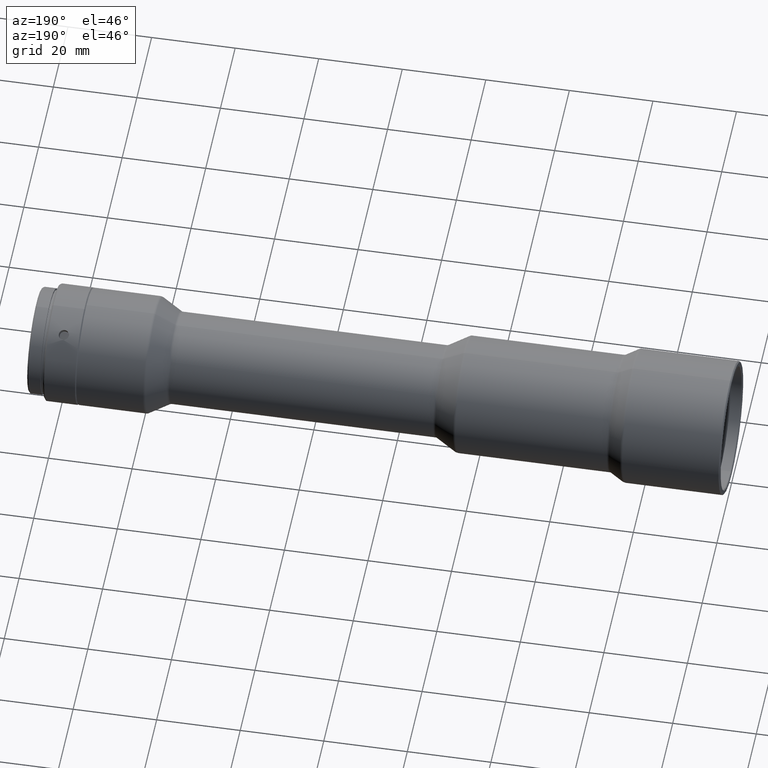
[diagram: clean part render]
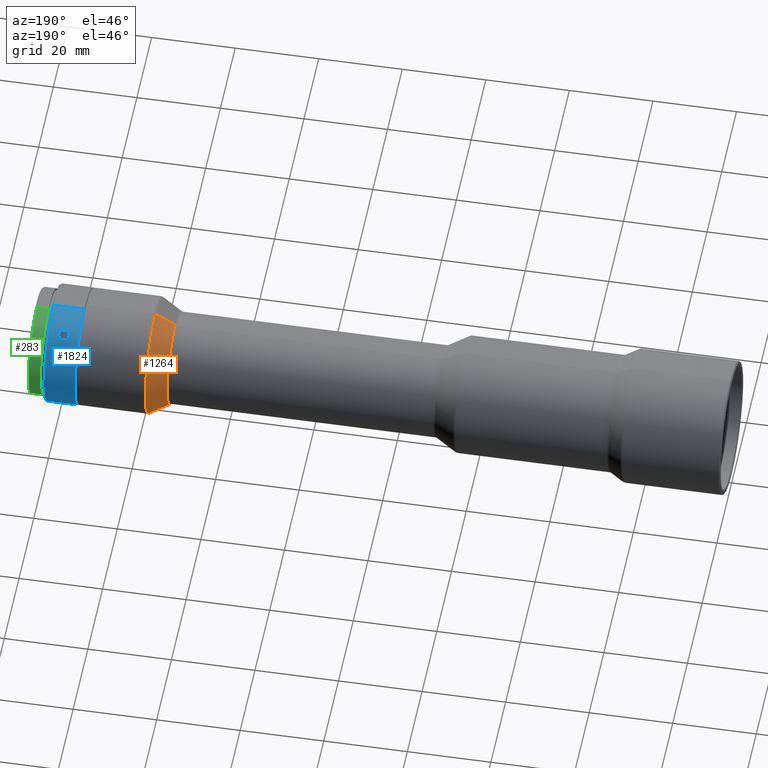
[diagram: same view with three faces highlighted in distinct colors, each labeled with its STEP entity id]
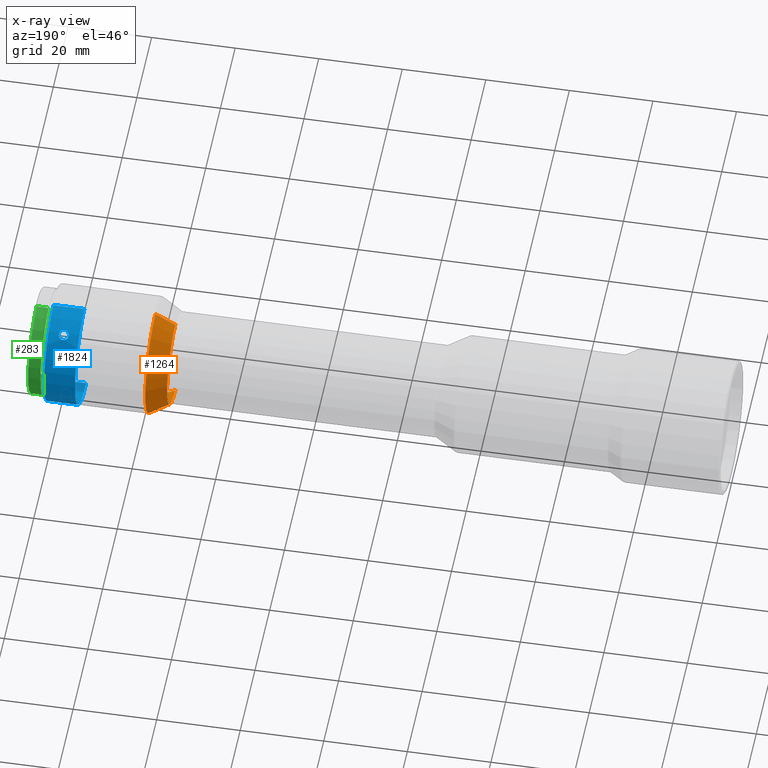
[diagram: x-ray of the same camera — body ghosted, the three highlighted faces saturated]
A machine part, auxiliary view with three faces highlighted in distinct colors.
The next image is the same camera in x-ray (body ghosted, the three faces saturated) — at least one of them is partly hidden behind the body in this view.
Their STEP definitions:

[orange] entity #1264 — the highlighted conical surface has half-angle 30 deg.
#48 = CIRCLE ( 'NONE', #1458, 11.13397459621556400 ) ;
#102 = ORIENTED_EDGE ( 'NONE', *, *, #706, .T. ) ;
#103 = CARTESIAN_POINT ( 'NONE',  ( 138.1389310000000100, 2.447091890248405500E-016, -14.00000000000000000 ) ) ;
#112 = DIRECTION ( 'NONE',  ( 0.8660254037844379300, 0.0000000000000000000, -0.5000000000000013300 ) ) ;
#175 = CARTESIAN_POINT ( 'NONE',  ( 133.1748293848622800, 2.447091890248405500E-016, 11.13397459621556400 ) ) ;
#231 = EDGE_LOOP ( 'NONE', ( #585, #102, #1510, #310 ) ) ;
#252 = EDGE_CURVE ( 'NONE', #1591, #1151, #48, .T. ) ;
#291 = VECTOR ( 'NONE', #112, 1000.000000000000000 ) ;
#310 = ORIENTED_EDGE ( 'NONE', *, *, #1830, .F. ) ;
#322 = VECTOR ( 'NONE', #1326, 1000.000000000000000 ) ;
#327 = CARTESIAN_POINT ( 'NONE',  ( 137.9068801924311500, 2.447091890248405500E-016, 0.0000000000000000000 ) ) ;
#384 = AXIS2_PLACEMENT_3D ( 'NONE', #1190, #1337, #1171 ) ;
#585 = ORIENTED_EDGE ( 'NONE', *, *, #252, .T. ) ;
#599 = CARTESIAN_POINT ( 'NONE',  ( 133.1748293848622800, 1.608227824129174000E-015, -11.13397459621556400 ) ) ;
#627 = LINE ( 'NONE', #103, #291 ) ;
#660 = VERTEX_POINT ( 'NONE', #1268 ) ;
#681 = AXIS2_PLACEMENT_3D ( 'NONE', #327, #1141, #1765 ) ;
#701 = LINE ( 'NONE', #910, #322 ) ;
#706 = EDGE_CURVE ( 'NONE', #1151, #660, #701, .T. ) ;
#767 = VERTEX_POINT ( 'NONE', #1021 ) ;
#910 = CARTESIAN_POINT ( 'NONE',  ( 138.1389310000000100, 1.959214707831135100E-015, 14.00000000000000000 ) ) ;
#1021 = CARTESIAN_POINT ( 'NONE',  ( 137.9068801924311500, 2.447091890248405500E-016, -13.86602540378443600 ) ) ;
#1141 = DIRECTION ( 'NONE',  ( -1.000000000000000000, -0.0000000000000000000, -0.0000000000000000000 ) ) ;
#1151 = VERTEX_POINT ( 'NONE', #175 ) ;
#1156 = DIRECTION ( 'NONE',  ( 1.000000000000000000, 0.0000000000000000000, 0.0000000000000000000 ) ) ;
#1166 = EDGE_CURVE ( 'NONE', #660, #767, #1691, .T. ) ;
#1171 = DIRECTION ( 'NONE',  ( 0.0000000000000000000, 0.0000000000000000000, -1.000000000000000000 ) ) ;
#1190 = CARTESIAN_POINT ( 'NONE',  ( 138.1389310000000100, 2.447091890248405500E-016, 0.0000000000000000000 ) ) ;
#1264 = ADVANCED_FACE ( 'NONE', ( #1842 ), #1731, .T. ) ;
#1268 = CARTESIAN_POINT ( 'NONE',  ( 137.9068801924311500, 1.942807551788889800E-015, 13.86602540378443600 ) ) ;
#1290 = DIRECTION ( 'NONE',  ( 0.0000000000000000000, 0.0000000000000000000, -1.000000000000000000 ) ) ;
#1307 = CARTESIAN_POINT ( 'NONE',  ( 133.1748293848622800, 2.447091890248405500E-016, 0.0000000000000000000 ) ) ;
#1326 = DIRECTION ( 'NONE',  ( 0.8660254037844379300, 6.123233995736782100E-017, 0.5000000000000013300 ) ) ;
#1337 = DIRECTION ( 'NONE',  ( 1.000000000000000000, 0.0000000000000000000, 0.0000000000000000000 ) ) ;
#1458 = AXIS2_PLACEMENT_3D ( 'NONE', #1307, #1156, #1290 ) ;
#1510 = ORIENTED_EDGE ( 'NONE', *, *, #1166, .T. ) ;
#1591 = VERTEX_POINT ( 'NONE', #599 ) ;
#1691 = CIRCLE ( 'NONE', #681, 13.86602540378444300 ) ;
#1731 = CONICAL_SURFACE ( 'NONE', #384, 14.00000000000000000, 0.5235987755983003700 ) ;
#1765 = DIRECTION ( 'NONE',  ( 0.0000000000000000000, 0.0000000000000000000, 1.000000000000000000 ) ) ;
#1830 = EDGE_CURVE ( 'NONE', #1591, #767, #627, .T. ) ;
#1842 = FACE_OUTER_BOUND ( 'NONE', #231, .T. ) ;

[blue] entity #1824 — the highlighted cylindrical surface (partial cylindrical patch) has radius 14 mm, axis along (1, -0, -0).
#7 = CARTESIAN_POINT ( 'NONE',  ( 159.4676293651811200, 7.636208197075385200, 11.73496895690758800 ) ) ;
#29 = CARTESIAN_POINT ( 'NONE',  ( 158.7334785828439000, 4.716163086663988800, -13.18185882026641300 ) ) ;
#30 = ORIENTED_EDGE ( 'NONE', *, *, #841, .T. ) ;
#37 = CARTESIAN_POINT ( 'NONE',  ( 159.3775665955926700, 5.119789047418463700, -13.03073385623368600 ) ) ;
#40 = CARTESIAN_POINT ( 'NONE',  ( 158.5755665238427800, 4.686371457721038200, -13.19234333089681100 ) ) ;
#58 = B_SPLINE_CURVE_WITH_KNOTS ( 'NONE', 3,
 ( #1496, #85, #916, #1336, #783, #927, #63, #635, #1800, #1192, #806, #88, #1646, #1066, #797, #631, #1502, #1182 ),
 .UNSPECIFIED., .F., .F.,
 ( 4, 2, 2, 2, 2, 2, 2, 2, 4 ),
 ( 0.0000000000000000000, 0.0004691834640387417600, 0.0009383669280774835100, 0.001407550392116225200, 0.001876733856154964900, 0.002345917320193708700, 0.002815100784232452500, 0.003284284248271196300, 0.003753467712309940500 ),
 .UNSPECIFIED. ) ;
#63 = CARTESIAN_POINT ( 'NONE',  ( 157.3702108775893900, 7.636466549270887000, 11.73478815725102500 ) ) ;
#72 = FACE_OUTER_BOUND ( 'NONE', #198, .T. ) ;
#74 = CARTESIAN_POINT ( 'NONE',  ( 162.1189310000000300, 6.573187175121917600E-017, 4.249936301359258300E-016 ) ) ;
#85 = CARTESIAN_POINT ( 'NONE',  ( 158.2602790622949600, 7.128477084170084400, 12.04926613783853500 ) ) ;
#88 = CARTESIAN_POINT ( 'NONE',  ( 157.3702648582034800, 8.619612715256384000, 11.03283379141489600 ) ) ;
#95 = CIRCLE ( 'NONE', #1269, 14.00000000000001600 ) ;
#126 = CARTESIAN_POINT ( 'NONE',  ( 157.6808843406094500, 6.659335198660523100, -12.31525682554705600 ) ) ;
#130 = CARTESIAN_POINT ( 'NONE',  ( 157.6822766485917400, 4.912272993777258500, -13.11038439131943000 ) ) ;
#138 = EDGE_LOOP ( 'NONE', ( #386, #284 ) ) ;
#189 = LINE ( 'NONE', #1300, #383 ) ;
#193 = VERTEX_POINT ( 'NONE', #389 ) ;
#198 = EDGE_LOOP ( 'NONE', ( #342, #30, #1344, #1509 ) ) ;
#227 = DIRECTION ( 'NONE',  ( 1.000000000000000000, -4.833225864060358700E-017, -3.124953162764342900E-016 ) ) ;
#274 = CARTESIAN_POINT ( 'NONE',  ( 158.4189310000000100, 7.128477084170082600, 12.04926613783853600 ) ) ;
#284 = ORIENTED_EDGE ( 'NONE', *, *, #1644, .T. ) ;
#300 = CARTESIAN_POINT ( 'NONE',  ( 158.5775460944081200, 6.870732030242684200, -12.19807531410582300 ) ) ;
#314 = CARTESIAN_POINT ( 'NONE',  ( 159.0237541039909700, 6.737644150032884300, -12.27223576930827400 ) ) ;
#341 = CARTESIAN_POINT ( 'NONE',  ( 166.4189310000000100, -1.348193732371614000, -13.93493357214143200 ) ) ;
#342 = ORIENTED_EDGE ( 'NONE', *, *, #1335, .T. ) ;
#356 = B_SPLINE_CURVE_WITH_KNOTS ( 'NONE', 3,
 ( #524, #828, #381, #1359, #1679, #1656, #1393, #557, #1411, #1378, #1565, #7, #1113, #1553, #544, #1708, #1557, #849 ),
 .UNSPECIFIED., .F., .F.,
 ( 4, 2, 2, 2, 2, 2, 2, 2, 4 ),
 ( 0.003753467712309940500, 0.004222542219181478700, 0.004691616726053017200, 0.005160691232924554900, 0.005629765739796093400, 0.006098840246667632000, 0.006567914753539169600, 0.007036989260410709100, 0.007506063767282246700 ),
 .UNSPECIFIED. ) ;
#375 = DIRECTION ( 'NONE',  ( 0.0000000000000000000, -0.09629955231225802200, -0.9953523980101010000 ) ) ;
#377 = CARTESIAN_POINT ( 'NONE',  ( 158.4189309999996200, 4.686371457712766600, -13.19234333089975000 ) ) ;
#381 = CARTESIAN_POINT ( 'NONE',  ( 158.7334785828439000, 9.057743064118630700, 10.67524645157470400 ) ) ;
#383 = VECTOR ( 'NONE', #1427, 1000.000000000000000 ) ;
#386 = ORIENTED_EDGE ( 'NONE', *, *, #435, .T. ) ;
#389 = CARTESIAN_POINT ( 'NONE',  ( 162.1189310000000300, 1.348193732371612700, 13.93493357214141800 ) ) ;
#408 = CARTESIAN_POINT ( 'NONE',  ( 157.2505185602807100, 6.085464618533602100, -12.60904416798782400 ) ) ;
#435 = EDGE_CURVE ( 'NONE', #445, #1037, #1461, .T. ) ;
#445 = VERTEX_POINT ( 'NONE', #1698 ) ;
#456 = VERTEX_POINT ( 'NONE', #274 ) ;
#471 = DIRECTION ( 'NONE',  ( 0.0000000000000000000, 0.09629955231225802200, 0.9953523980101010000 ) ) ;
#496 = FACE_BOUND ( 'NONE', #1550, .T. ) ;
#499 = LINE ( 'NONE', #341, #1234 ) ;
#524 = CARTESIAN_POINT ( 'NONE',  ( 158.4189309999996200, 9.081718731148958700, 10.65468839939949500 ) ) ;
#534 = DIRECTION ( 'NONE',  ( 1.000000000000000000, -4.833225864060358700E-017, -3.124953162764342900E-016 ) ) ;
#544 = CARTESIAN_POINT ( 'NONE',  ( 159.0237541039909700, 7.259245862436531900, 11.97108888024226300 ) ) ;
#547 = CARTESIAN_POINT ( 'NONE',  ( 158.4189309999996200, 4.686371457712766600, -13.19234333089975000 ) ) ;
#557 = CARTESIAN_POINT ( 'NONE',  ( 159.5874203008438000, 8.389926033365537000, 11.20848947290685500 ) ) ;
#583 = CARTESIAN_POINT ( 'NONE',  ( 158.4189309999996200, 4.686371457712766600, -13.19234333089975000 ) ) ;
#596 = CARTESIAN_POINT ( 'NONE',  ( 159.6190554131494000, 5.943264427679956400, -12.67685756926825900 ) ) ;
#631 = CARTESIAN_POINT ( 'NONE',  ( 158.1050605388409200, 9.057991737062320000, 10.67503794223703800 ) ) ;
#635 = CARTESIAN_POINT ( 'NONE',  ( 157.2505185602807100, 7.877020257650618100, 11.57468903747543400 ) ) ;
#687 = CARTESIAN_POINT ( 'NONE',  ( 157.8143099306888600, 4.829440986737887800, -13.14078190719661000 ) ) ;
#732 = CARTESIAN_POINT ( 'NONE',  ( 159.5879536752728400, 6.083904658722163500, -12.60980872782156000 ) ) ;
#745 = CARTESIAN_POINT ( 'NONE',  ( 159.3786458870964700, 6.462983225920131900, -12.41942664656259300 ) ) ;
#755 = CARTESIAN_POINT ( 'NONE',  ( 158.7351280438860500, 6.842868024091290900, -12.21387639837700200 ) ) ;
#775 = EDGE_CURVE ( 'NONE', #456, #1784, #58, .T. ) ;
#783 = CARTESIAN_POINT ( 'NONE',  ( 157.6808843406094500, 7.335657665723121400, 11.92478186712947500 ) ) ;
#797 = CARTESIAN_POINT ( 'NONE',  ( 157.8143099306888400, 8.965530463854184600, 10.75280953419115400 ) ) ;
#806 = CARTESIAN_POINT ( 'NONE',  ( 157.2499795659047400, 8.388590230611518100, 11.20949145915571400 ) ) ;
#811 = CARTESIAN_POINT ( 'NONE',  ( 154.7189310000000300, 4.233905856916853300E-016, 2.737458970581534800E-015 ) ) ;
#820 = ORIENTED_EDGE ( 'NONE', *, *, #775, .T. ) ;
#828 = CARTESIAN_POINT ( 'NONE',  ( 158.5755665238427800, 9.081718731142277800, 10.65468839940518600 ) ) ;
#841 = EDGE_CURVE ( 'NONE', #893, #193, #189, .T. ) ;
#842 = CARTESIAN_POINT ( 'NONE',  ( 158.1050605388408900, 4.715858175808801200, -13.18196992268405100 ) ) ;
#849 = CARTESIAN_POINT ( 'NONE',  ( 158.4189310000000100, 7.128477084170082600, 12.04926613783853600 ) ) ;
#853 = EDGE_CURVE ( 'NONE', #1338, #872, #499, .T. ) ;
#872 = VERTEX_POINT ( 'NONE', #903 ) ;
#893 = VERTEX_POINT ( 'NONE', #1048 ) ;
#896 = CARTESIAN_POINT ( 'NONE',  ( 159.5874203008438000, 5.511873604904971000, -12.87013381722041300 ) ) ;
#903 = CARTESIAN_POINT ( 'NONE',  ( 162.1189310000000300, -1.348193732371611800, -13.93493357214142500 ) ) ;
#916 = CARTESIAN_POINT ( 'NONE',  ( 158.1046039500634500, 7.155538743996809000, 12.03336690958852500 ) ) ;
#927 = CARTESIAN_POINT ( 'NONE',  ( 157.4596010884710000, 7.523626256484401000, 11.80708871483741100 ) ) ;
#945 = EDGE_CURVE ( 'NONE', #193, #872, #95, .T. ) ;
#954 = CARTESIAN_POINT ( 'NONE',  ( 158.4189309999996200, 9.081718731148958700, 10.65468839939949500 ) ) ;
#959 = ORIENTED_EDGE ( 'NONE', *, *, #1353, .T. ) ;
#990 = CARTESIAN_POINT ( 'NONE',  ( 158.1046039500635100, 6.843432064764229500, -12.21356178485933200 ) ) ;
#1037 = VERTEX_POINT ( 'NONE', #377 ) ;
#1048 = CARTESIAN_POINT ( 'NONE',  ( 154.7189310000000300, 1.348193732371614400, 13.93493357214141800 ) ) ;
#1066 = CARTESIAN_POINT ( 'NONE',  ( 157.6822766485917700, 8.897789439372935800, 10.80934539859509700 ) ) ;
#1077 = AXIS2_PLACEMENT_3D ( 'NONE', #811, #227, #375 ) ;
#1094 = CARTESIAN_POINT ( 'NONE',  ( 166.4189310000000100, -1.420968404033741700E-016, -9.187362298527154300E-016 ) ) ;
#1096 = CARTESIAN_POINT ( 'NONE',  ( 157.8139688273714100, 6.737710450615670900, -12.27220077171505800 ) ) ;
#1111 = CARTESIAN_POINT ( 'NONE',  ( 158.4189310000000100, 6.870732030242683300, -12.19807531410582200 ) ) ;
#1113 = CARTESIAN_POINT ( 'NONE',  ( 159.3786458870964700, 7.524047363400485200, 11.80682098116085400 ) ) ;
#1138 = CARTESIAN_POINT ( 'NONE',  ( 159.1574581309234000, 6.659011010066012500, -12.31543270761095200 ) ) ;
#1154 = B_SPLINE_CURVE_WITH_KNOTS ( 'NONE', 3,
 ( #583, #40, #29, #1160, #1280, #37, #1583, #896, #1443, #596, #732, #1600, #745, #1138, #314, #755, #300, #1289 ),
 .UNSPECIFIED., .F., .F.,
 ( 4, 2, 2, 2, 2, 2, 2, 2, 4 ),
 ( 0.003753467712309959200, 0.004222542219181495100, 0.004691616726053031900, 0.005160691232924567900, 0.005629765739796104700, 0.006098840246667640600, 0.006567914753539176600, 0.007036989260410712500, 0.007506063767282249300 ),
 .UNSPECIFIED. ) ;
#1160 = CARTESIAN_POINT ( 'NONE',  ( 159.0223112406124000, 4.828915940389114400, -13.14097283530041200 ) ) ;
#1182 = CARTESIAN_POINT ( 'NONE',  ( 158.4189309999996200, 9.081718731148958700, 10.65468839939949500 ) ) ;
#1192 = CARTESIAN_POINT ( 'NONE',  ( 157.2188746140484500, 8.262149975139960700, 11.30315913890760800 ) ) ;
#1193 = DIRECTION ( 'NONE',  ( -1.000000000000000000, 4.833225864060358700E-017, 3.124953162764342900E-016 ) ) ;
#1234 = VECTOR ( 'NONE', #1463, 1000.000000000000000 ) ;
#1235 = CARTESIAN_POINT ( 'NONE',  ( 158.2602790622948700, 6.870732030242683300, -12.19807531410582300 ) ) ;
#1241 = CARTESIAN_POINT ( 'NONE',  ( 157.3702648582034800, 5.244907981468434100, -12.98122047790285700 ) ) ;
#1269 = AXIS2_PLACEMENT_3D ( 'NONE', #74, #1193, #471 ) ;
#1280 = CARTESIAN_POINT ( 'NONE',  ( 159.1561753451515000, 4.913003482708460500, -13.11009769227351800 ) ) ;
#1289 = CARTESIAN_POINT ( 'NONE',  ( 158.4189310000000100, 6.870732030242683300, -12.19807531410582200 ) ) ;
#1300 = CARTESIAN_POINT ( 'NONE',  ( 166.4189310000000100, 1.348193732371615300, 13.93493357214142800 ) ) ;
#1329 = AXIS2_PLACEMENT_3D ( 'NONE', #1094, #534, #1680 ) ;
#1335 = EDGE_CURVE ( 'NONE', #1338, #893, #1426, .T. ) ;
#1336 = CARTESIAN_POINT ( 'NONE',  ( 157.8139688273714700, 7.259182403340332700, 11.97112879943464500 ) ) ;
#1338 = VERTEX_POINT ( 'NONE', #1803 ) ;
#1344 = ORIENTED_EDGE ( 'NONE', *, *, #945, .T. ) ;
#1353 = EDGE_CURVE ( 'NONE', #1784, #456, #356, .T. ) ;
#1359 = CARTESIAN_POINT ( 'NONE',  ( 159.0223112406123700, 8.965958335616759800, 10.75245029476685200 ) ) ;
#1378 = CARTESIAN_POINT ( 'NONE',  ( 159.6190554131494000, 8.006848481303336500, 11.48544676041338900 ) ) ;
#1380 = CARTESIAN_POINT ( 'NONE',  ( 157.2499795659047400, 5.513409251827730500, -12.86947797122541500 ) ) ;
#1387 = CARTESIAN_POINT ( 'NONE',  ( 157.2188746140484500, 5.657747969742189300, -12.80681133780200100 ) ) ;
#1393 = CARTESIAN_POINT ( 'NONE',  ( 159.4668171833708100, 8.620657852395185100, 11.03201492482428700 ) ) ;
#1401 = CARTESIAN_POINT ( 'NONE',  ( 157.2189875419242900, 5.942833067293417300, -12.67703687245011500 ) ) ;
#1409 = CARTESIAN_POINT ( 'NONE',  ( 157.4596010884710900, 6.463425643543484300, -12.41919582411384600 ) ) ;
#1411 = CARTESIAN_POINT ( 'NONE',  ( 159.6188058426969900, 8.264763239348857500, 11.30127419746763300 ) ) ;
#1421 = FACE_BOUND ( 'NONE', #138, .T. ) ;
#1426 = CIRCLE ( 'NONE', #1077, 14.00000000000001600 ) ;
#1427 = DIRECTION ( 'NONE',  ( 1.000000000000000000, -4.833225864060359300E-017, -3.124953162764342900E-016 ) ) ;
#1443 = CARTESIAN_POINT ( 'NONE',  ( 159.6188058426969900, 5.654808930466085600, -12.80813202027372100 ) ) ;
#1461 = B_SPLINE_CURVE_WITH_KNOTS ( 'NONE', 3,
 ( #1111, #1235, #990, #1096, #126, #1409, #1562, #408, #1401, #1387, #1380, #1241, #1541, #130, #687, #842, #1843, #547 ),
 .UNSPECIFIED., .F., .F.,
 ( 4, 2, 2, 2, 2, 2, 2, 2, 4 ),
 ( 0.0000000000000000000, 0.0004691834640387449000, 0.0009383669280774898000, 0.001407550392116234700, 0.001876733856154979600, 0.002345917320193724300, 0.002815100784232469400, 0.003284284248271214500, 0.003753467712309959200 ),
 .UNSPECIFIED. ) ;
#1463 = DIRECTION ( 'NONE',  ( 1.000000000000000000, -4.833225864060359300E-017, -3.124953162764342900E-016 ) ) ;
#1496 = CARTESIAN_POINT ( 'NONE',  ( 158.4189310000000100, 7.128477084170082600, 12.04926613783853600 ) ) ;
#1502 = CARTESIAN_POINT ( 'NONE',  ( 158.2622590926753500, 9.081718731142094800, 10.65468839940534100 ) ) ;
#1509 = ORIENTED_EDGE ( 'NONE', *, *, #853, .F. ) ;
#1541 = CARTESIAN_POINT ( 'NONE',  ( 157.4582265344556300, 5.121902035409347900, -13.02991651520511800 ) ) ;
#1550 = EDGE_LOOP ( 'NONE', ( #820, #959 ) ) ;
#1553 = CARTESIAN_POINT ( 'NONE',  ( 159.1574581309234300, 7.335972078355800000, 11.92458905260294900 ) ) ;
#1557 = CARTESIAN_POINT ( 'NONE',  ( 158.5775460944080900, 7.128477084170086200, 12.04926613783853800 ) ) ;
#1562 = CARTESIAN_POINT ( 'NONE',  ( 157.3702108775894100, 6.344391377572661900, -12.48076810544422200 ) ) ;
#1565 = CARTESIAN_POINT ( 'NONE',  ( 159.5879536752728400, 7.878462365795065200, 11.57372035256671300 ) ) ;
#1567 = CYLINDRICAL_SURFACE ( 'NONE', #1329, 14.00000000000001600 ) ;
#1583 = CARTESIAN_POINT ( 'NONE',  ( 159.4668171833707800, 5.243676253629259600, -12.98171615992019700 ) ) ;
#1600 = CARTESIAN_POINT ( 'NONE',  ( 159.4676293651811000, 6.344677130765999700, -12.48063476570807100 ) ) ;
#1644 = EDGE_CURVE ( 'NONE', #1037, #445, #1154, .T. ) ;
#1646 = CARTESIAN_POINT ( 'NONE',  ( 157.4582265344556300, 8.723287693653324100, 10.95065553596231200 ) ) ;
#1656 = CARTESIAN_POINT ( 'NONE',  ( 159.3775665955926400, 8.725052025743059000, 10.94923430519859600 ) ) ;
#1679 = CARTESIAN_POINT ( 'NONE',  ( 159.1561753451515000, 8.897175906250332400, 10.80983467104374400 ) ) ;
#1680 = DIRECTION ( 'NONE',  ( 0.0000000000000000000, -0.09629955231225802200, -0.9953523980101010000 ) ) ;
#1698 = CARTESIAN_POINT ( 'NONE',  ( 158.4189310000000100, 6.870732030242683300, -12.19807531410582200 ) ) ;
#1708 = CARTESIAN_POINT ( 'NONE',  ( 158.7351280438860500, 7.156093227631966900, 12.03303574279581800 ) ) ;
#1784 = VERTEX_POINT ( 'NONE', #954 ) ;
#1800 = CARTESIAN_POINT ( 'NONE',  ( 157.2189875419242900, 8.007219442607061300, 11.48516284295138900 ) ) ;
#1803 = CARTESIAN_POINT ( 'NONE',  ( 154.7189310000000300, -1.348193732371613300, -13.93493357214142700 ) ) ;
#1824 = ADVANCED_FACE ( 'NONE', ( #496, #1421, #72 ), #1567, .T. ) ;
#1843 = CARTESIAN_POINT ( 'NONE',  ( 158.2622590926753500, 4.686371457721265600, -13.19234333089673300 ) ) ;

[green] entity #283 — the highlighted cylindrical surface (partial cylindrical patch) has radius 12.7 mm, axis along (1, -0, -0).
#99 = DIRECTION ( 'NONE',  ( -1.000000000000000000, 4.833225864060358700E-017, 3.124953162764342900E-016 ) ) ;
#121 = ORIENTED_EDGE ( 'NONE', *, *, #1257, .T. ) ;
#157 = CYLINDRICAL_SURFACE ( 'NONE', #856, 12.70000000000001400 ) ;
#158 = ORIENTED_EDGE ( 'NONE', *, *, #489, .F. ) ;
#202 = CARTESIAN_POINT ( 'NONE',  ( 166.1189310000000300, 1.223004314365677000, 12.64097545472828400 ) ) ;
#283 = ADVANCED_FACE ( 'NONE', ( #581 ), #157, .T. ) ;
#288 = AXIS2_PLACEMENT_3D ( 'NONE', #1044, #782, #1776 ) ;
#398 = CIRCLE ( 'NONE', #926, 12.70000000000001400 ) ;
#404 = DIRECTION ( 'NONE',  ( 0.0000000000000000000, 0.09629955231225802200, 0.9953523980101010000 ) ) ;
#419 = CARTESIAN_POINT ( 'NONE',  ( 166.1189310000000300, -1.223004314365676800, -12.64097545472829500 ) ) ;
#444 = VECTOR ( 'NONE', #931, 1000.000000000000000 ) ;
#450 = VECTOR ( 'NONE', #1145, 1000.000000000000000 ) ;
#472 = EDGE_LOOP ( 'NONE', ( #121, #1702, #932, #158 ) ) ;
#489 = EDGE_CURVE ( 'NONE', #1615, #1103, #1778, .T. ) ;
#581 = FACE_OUTER_BOUND ( 'NONE', #472, .T. ) ;
#675 = DIRECTION ( 'NONE',  ( 0.0000000000000000000, -0.09629955231225802200, -0.9953523980101010000 ) ) ;
#713 = CARTESIAN_POINT ( 'NONE',  ( 166.4189310000000100, -1.223004314365678400, -12.64097545472829900 ) ) ;
#782 = DIRECTION ( 'NONE',  ( 1.000000000000000000, -4.833225864060358700E-017, -3.124953162764342900E-016 ) ) ;
#821 = CARTESIAN_POINT ( 'NONE',  ( 166.4189310000000100, -1.420968404033741700E-016, -9.187362298527154300E-016 ) ) ;
#856 = AXIS2_PLACEMENT_3D ( 'NONE', #821, #1802, #675 ) ;
#915 = VERTEX_POINT ( 'NONE', #202 ) ;
#924 = CARTESIAN_POINT ( 'NONE',  ( 166.4189310000000100, 1.223004314365679500, 12.64097545472829500 ) ) ;
#926 = AXIS2_PLACEMENT_3D ( 'NONE', #1383, #99, #404 ) ;
#931 = DIRECTION ( 'NONE',  ( 1.000000000000000000, -4.833225864060359300E-017, -3.124953162764342900E-016 ) ) ;
#932 = ORIENTED_EDGE ( 'NONE', *, *, #1806, .T. ) ;
#1016 = CARTESIAN_POINT ( 'NONE',  ( 163.2189310000000000, -1.223004314365677900, -12.64097545472829300 ) ) ;
#1044 = CARTESIAN_POINT ( 'NONE',  ( 163.2189310000000000, 1.256638724655408000E-017, 8.124878223184535800E-017 ) ) ;
#1103 = VERTEX_POINT ( 'NONE', #419 ) ;
#1145 = DIRECTION ( 'NONE',  ( 1.000000000000000000, -4.833225864060359300E-017, -3.124953162764342900E-016 ) ) ;
#1257 = EDGE_CURVE ( 'NONE', #1615, #1482, #1278, .T. ) ;
#1278 = CIRCLE ( 'NONE', #288, 12.70000000000001000 ) ;
#1383 = CARTESIAN_POINT ( 'NONE',  ( 166.1189310000000300, -1.275971628111981400E-016, -8.249876349698359800E-016 ) ) ;
#1482 = VERTEX_POINT ( 'NONE', #1752 ) ;
#1613 = LINE ( 'NONE', #924, #444 ) ;
#1615 = VERTEX_POINT ( 'NONE', #1016 ) ;
#1702 = ORIENTED_EDGE ( 'NONE', *, *, #1742, .T. ) ;
#1742 = EDGE_CURVE ( 'NONE', #1482, #915, #1613, .T. ) ;
#1752 = CARTESIAN_POINT ( 'NONE',  ( 163.2189310000000000, 1.223004314365677700, 12.64097545472827900 ) ) ;
#1776 = DIRECTION ( 'NONE',  ( 0.0000000000000000000, -0.09629955231225802200, -0.9953523980101010000 ) ) ;
#1778 = LINE ( 'NONE', #713, #450 ) ;
#1802 = DIRECTION ( 'NONE',  ( 1.000000000000000000, -4.833225864060358700E-017, -3.124953162764342900E-016 ) ) ;
#1806 = EDGE_CURVE ( 'NONE', #915, #1103, #398, .T. ) ;